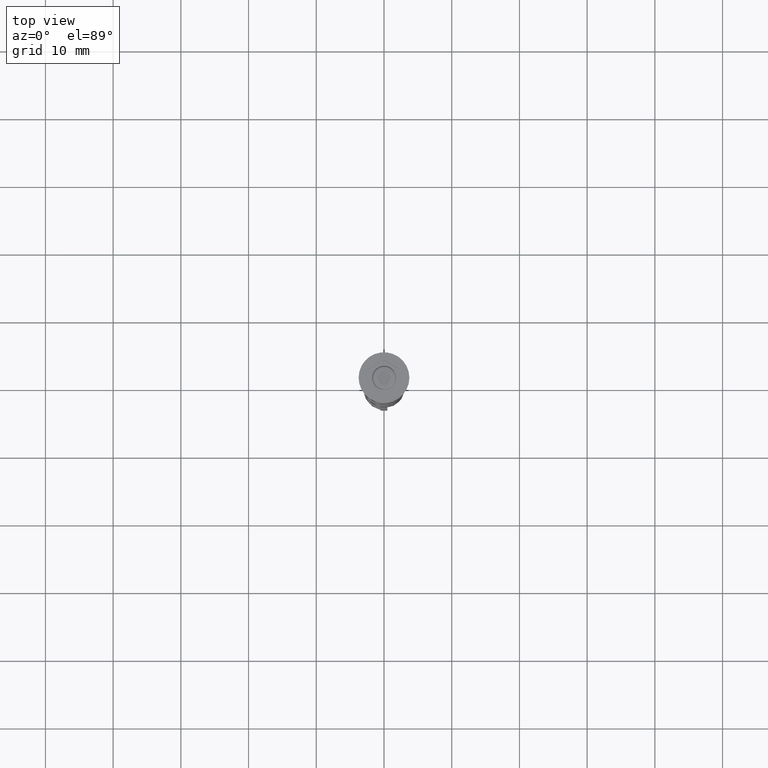
[diagram: clean part render]
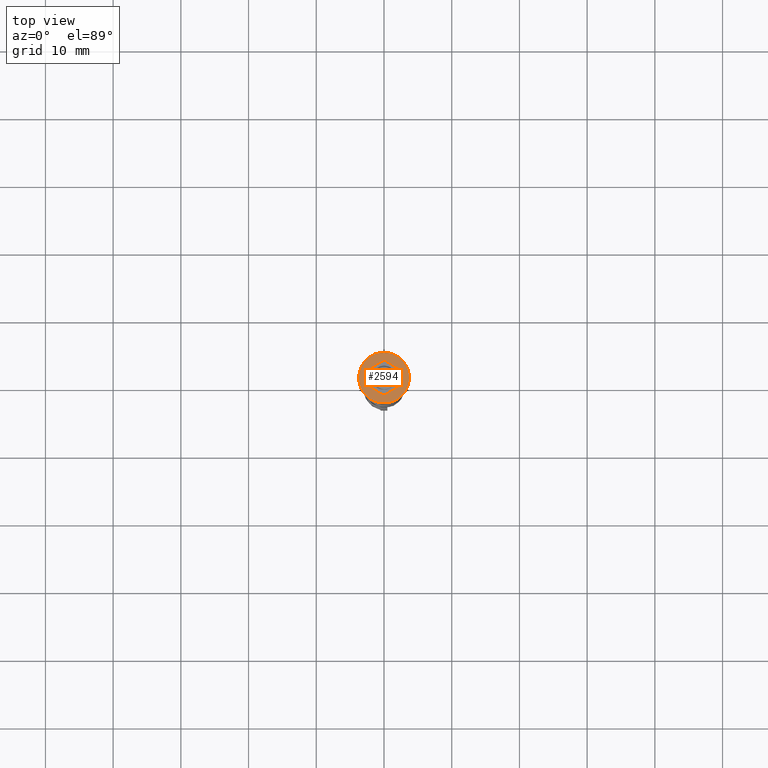
[diagram: same view with one face highlighted and labeled with its STEP entity id]
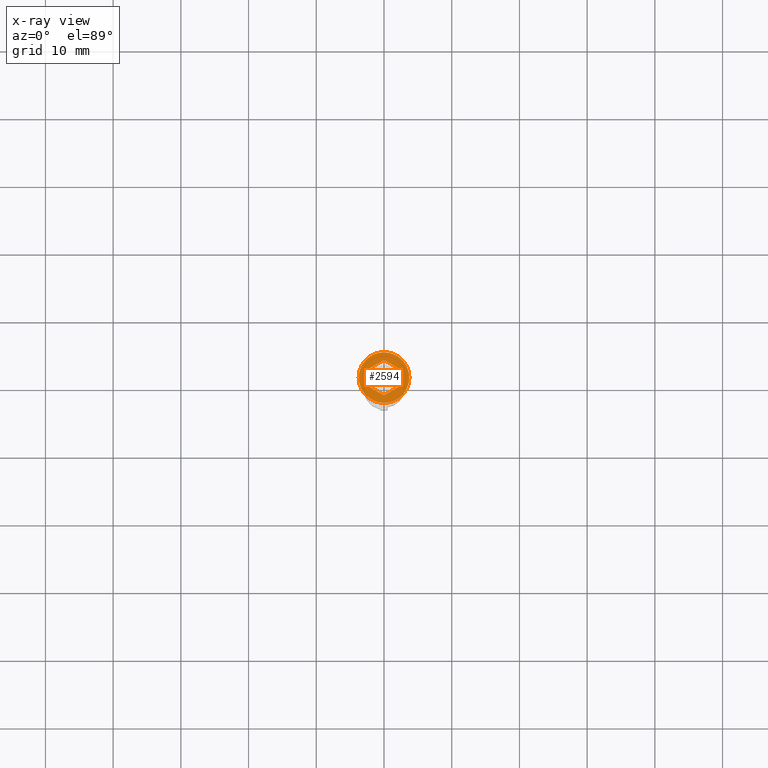
[diagram: x-ray of the same camera — body ghosted, the highlighted face saturated]
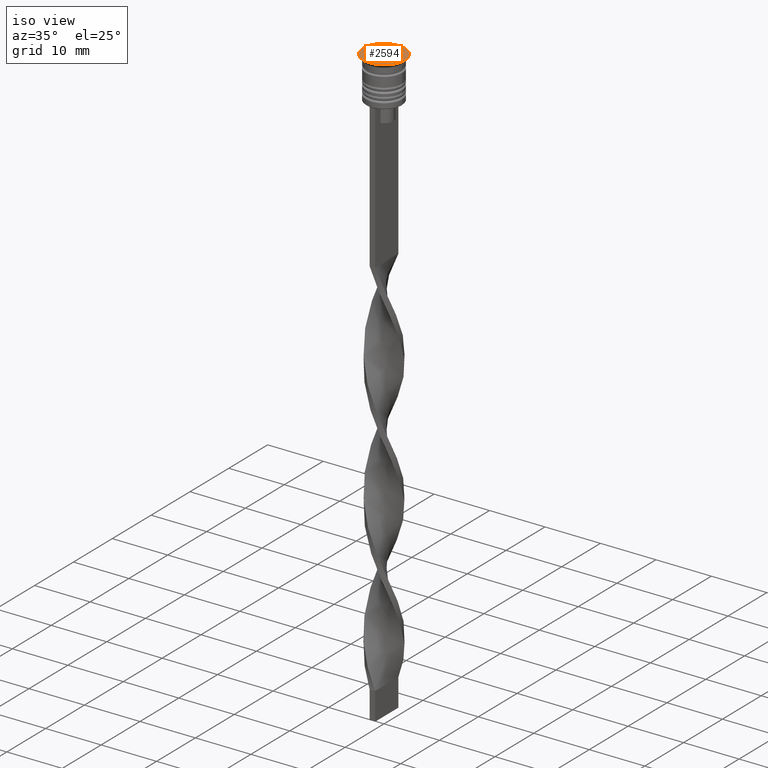
[diagram: same view with one face highlighted and labeled with its STEP entity id]
A machine part, top view. The second image highlights one B-rep face of the part: STEP entity #2594.
The next image is the same camera in x-ray: the body ghosted, the highlighted face saturated — about 0% of this face is hidden behind the body in this view.
A second angle (iso view) of the same face is appended — the face is thin or edge-on in the first view.
In plain terms, the highlighted planar face has unit normal (0, -0, 1).
Its self-contained STEP definition (entity closure, byte-faithful):
#86 = AXIS2_PLACEMENT_3D ( 'NONE', #3135, #1083, #809 ) ;
#102 = VERTEX_POINT ( 'NONE', #3242 ) ;
#135 = EDGE_CURVE ( 'NONE', #796, #3347, #2202, .T. ) ;
#207 = CARTESIAN_POINT ( 'NONE',  ( -2.250000000000000888, -1.299038105676658228, 0.000000000000000000 ) ) ;
#245 = CIRCLE ( 'NONE', #86, 3.750000000000000000 ) ;
#287 = CARTESIAN_POINT ( 'NONE',  ( 0.000000000000000000, 2.598076211353316456, 0.000000000000000000 ) ) ;
#323 = CARTESIAN_POINT ( 'NONE',  ( -2.250000000000000888, 1.299038105676658228, 0.000000000000000000 ) ) ;
#339 = ORIENTED_EDGE ( 'NONE', *, *, #1512, .F. ) ;
#441 = CARTESIAN_POINT ( 'NONE',  ( 0.000000000000000000, 2.598076211353316012, 0.000000000000000000 ) ) ;
#599 = ORIENTED_EDGE ( 'NONE', *, *, #1339, .F. ) ;
#640 = LINE ( 'NONE', #323, #2362 ) ;
#782 = DIRECTION ( 'NONE',  ( 0.8660254037844387076, -0.4999999999999998335, 0.000000000000000000 ) ) ;
#796 = VERTEX_POINT ( 'NONE', #1525 ) ;
#809 = DIRECTION ( 'NONE',  ( 1.000000000000000000, 0.000000000000000000, 0.000000000000000000 ) ) ;
#835 = AXIS2_PLACEMENT_3D ( 'NONE', #3309, #1032, #2555 ) ;
#895 = CARTESIAN_POINT ( 'NONE',  ( -3.750000000000000000, 4.592425496802573972E-16, 0.000000000000000000 ) ) ;
#973 = EDGE_LOOP ( 'NONE', ( #1425, #2928, #2454, #2708, #339, #599 ) ) ;
#1032 = DIRECTION ( 'NONE',  ( -0.000000000000000000, -0.000000000000000000, 1.000000000000000000 ) ) ;
#1070 = DIRECTION ( 'NONE',  ( -0.8660254037844387076, -0.4999999999999999445, 0.000000000000000000 ) ) ;
#1083 = DIRECTION ( 'NONE',  ( -0.000000000000000000, -0.000000000000000000, 1.000000000000000000 ) ) ;
#1084 = LINE ( 'NONE', #287, #1985 ) ;
#1175 = EDGE_CURVE ( 'NONE', #3347, #1251, #1900, .T. ) ;
#1223 = VERTEX_POINT ( 'NONE', #2001 ) ;
#1251 = VERTEX_POINT ( 'NONE', #441 ) ;
#1270 = VECTOR ( 'NONE', #782, 1000.000000000000000 ) ;
#1337 = CARTESIAN_POINT ( 'NONE',  ( -2.250000000000000888, -1.299038105676658228, 0.000000000000000000 ) ) ;
#1339 = EDGE_CURVE ( 'NONE', #1251, #102, #1084, .T. ) ;
#1358 = PLANE ( 'NONE',  #1720 ) ;
#1364 = DIRECTION ( 'NONE',  ( -0.8660254037844388186, 0.4999999999999997224, 0.000000000000000000 ) ) ;
#1425 = ORIENTED_EDGE ( 'NONE', *, *, #1175, .F. ) ;
#1471 = ORIENTED_EDGE ( 'NONE', *, *, #2606, .T. ) ;
#1481 = VERTEX_POINT ( 'NONE', #895 ) ;
#1512 = EDGE_CURVE ( 'NONE', #102, #3041, #640, .T. ) ;
#1525 = CARTESIAN_POINT ( 'NONE',  ( 2.250000000000000000, -1.299038105676658228, 0.000000000000000000 ) ) ;
#1544 = LINE ( 'NONE', #1786, #1666 ) ;
#1666 = VECTOR ( 'NONE', #1838, 1000.000000000000000 ) ;
#1677 = CARTESIAN_POINT ( 'NONE',  ( 2.250000000000000444, 1.299038105676659116, 0.000000000000000000 ) ) ;
#1678 = VERTEX_POINT ( 'NONE', #2479 ) ;
#1686 = DIRECTION ( 'NONE',  ( 0.000000000000000000, -1.000000000000000000, 0.000000000000000000 ) ) ;
#1720 = AXIS2_PLACEMENT_3D ( 'NONE', #2398, #1894, #2869 ) ;
#1751 = EDGE_LOOP ( 'NONE', ( #1471, #2215 ) ) ;
#1753 = EDGE_CURVE ( 'NONE', #3041, #1678, #2541, .T. ) ;
#1786 = CARTESIAN_POINT ( 'NONE',  ( 2.224527942369933556E-16, -2.598076211353316456, 0.000000000000000000 ) ) ;
#1799 = EDGE_CURVE ( 'NONE', #1481, #1223, #3167, .T. ) ;
#1810 = VECTOR ( 'NONE', #3227, 1000.000000000000000 ) ;
#1838 = DIRECTION ( 'NONE',  ( 0.8660254037844385966, 0.5000000000000001110, 0.000000000000000000 ) ) ;
#1894 = DIRECTION ( 'NONE',  ( 0.000000000000000000, -0.000000000000000000, 1.000000000000000000 ) ) ;
#1900 = LINE ( 'NONE', #1677, #2033 ) ;
#1905 = CARTESIAN_POINT ( 'NONE',  ( 2.250000000000000444, 1.299038105676659116, 0.000000000000000000 ) ) ;
#1985 = VECTOR ( 'NONE', #1070, 1000.000000000000000 ) ;
#2001 = CARTESIAN_POINT ( 'NONE',  ( 3.750000000000000000, 0.000000000000000000, 0.000000000000000000 ) ) ;
#2033 = VECTOR ( 'NONE', #1364, 1000.000000000000000 ) ;
#2202 = LINE ( 'NONE', #2975, #1810 ) ;
#2215 = ORIENTED_EDGE ( 'NONE', *, *, #1799, .T. ) ;
#2362 = VECTOR ( 'NONE', #1686, 1000.000000000000000 ) ;
#2398 = CARTESIAN_POINT ( 'NONE',  ( 0.000000000000000000, 0.000000000000000000, 0.000000000000000000 ) ) ;
#2454 = ORIENTED_EDGE ( 'NONE', *, *, #3185, .F. ) ;
#2479 = CARTESIAN_POINT ( 'NONE',  ( 2.224527942369933556E-16, -2.598076211353316456, 0.000000000000000000 ) ) ;
#2541 = LINE ( 'NONE', #207, #1270 ) ;
#2555 = DIRECTION ( 'NONE',  ( 1.000000000000000000, 0.000000000000000000, 0.000000000000000000 ) ) ;
#2594 = ADVANCED_FACE ( 'NONE', ( #3187, #2921 ), #1358, .T. ) ;
#2606 = EDGE_CURVE ( 'NONE', #1223, #1481, #245, .T. ) ;
#2708 = ORIENTED_EDGE ( 'NONE', *, *, #1753, .F. ) ;
#2869 = DIRECTION ( 'NONE',  ( 1.000000000000000000, 0.000000000000000000, 0.000000000000000000 ) ) ;
#2921 = FACE_OUTER_BOUND ( 'NONE', #1751, .T. ) ;
#2928 = ORIENTED_EDGE ( 'NONE', *, *, #135, .F. ) ;
#2975 = CARTESIAN_POINT ( 'NONE',  ( 2.250000000000000000, -1.299038105676658228, 0.000000000000000000 ) ) ;
#3041 = VERTEX_POINT ( 'NONE', #1337 ) ;
#3135 = CARTESIAN_POINT ( 'NONE',  ( 0.000000000000000000, 0.000000000000000000, 0.000000000000000000 ) ) ;
#3167 = CIRCLE ( 'NONE', #835, 3.750000000000000000 ) ;
#3185 = EDGE_CURVE ( 'NONE', #1678, #796, #1544, .T. ) ;
#3187 = FACE_BOUND ( 'NONE', #973, .T. ) ;
#3227 = DIRECTION ( 'NONE',  ( 1.669238443041287429E-16, 1.000000000000000000, 0.000000000000000000 ) ) ;
#3242 = CARTESIAN_POINT ( 'NONE',  ( -2.250000000000000888, 1.299038105676658228, 0.000000000000000000 ) ) ;
#3309 = CARTESIAN_POINT ( 'NONE',  ( 0.000000000000000000, 0.000000000000000000, 0.000000000000000000 ) ) ;
#3347 = VERTEX_POINT ( 'NONE', #1905 ) ;